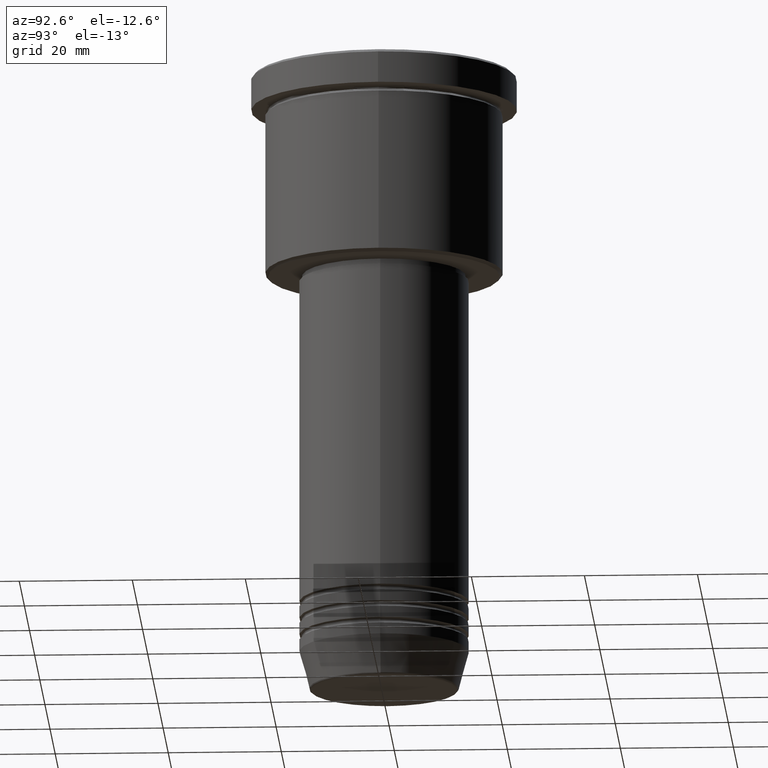
[diagram: clean part render]
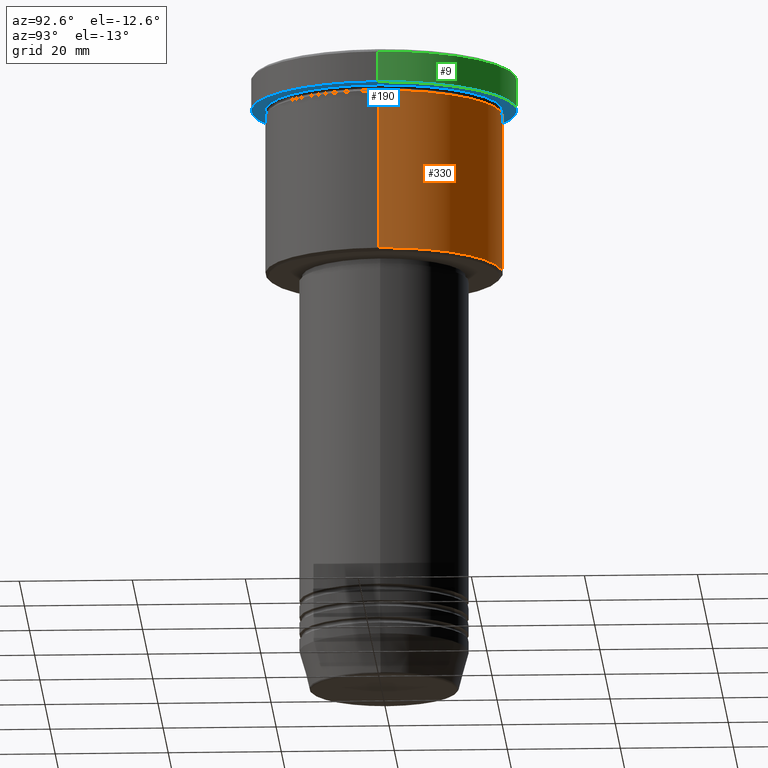
[diagram: same view with three faces highlighted in distinct colors, each labeled with its STEP entity id]
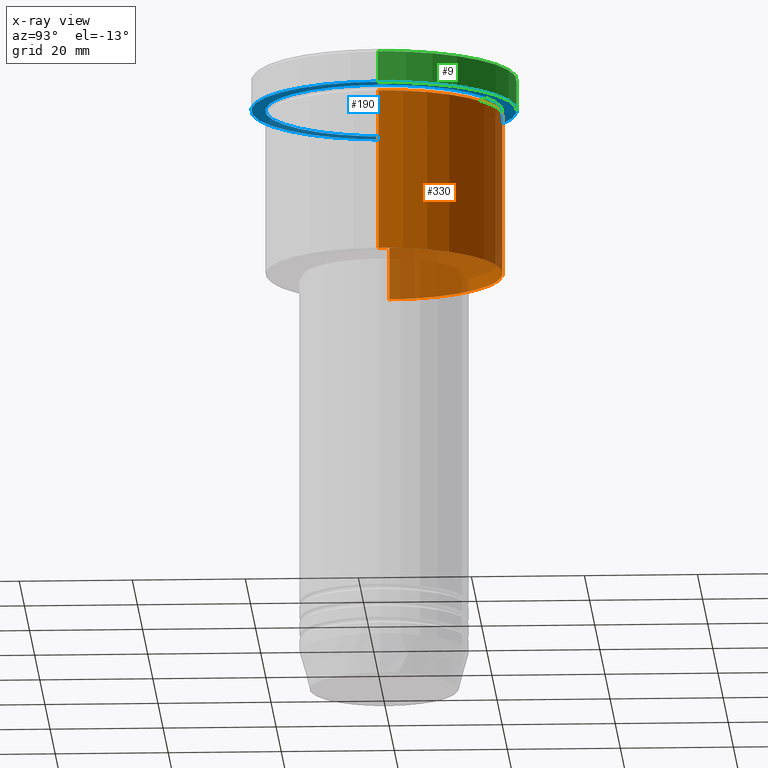
[diagram: x-ray of the same camera — body ghosted, the three highlighted faces saturated]
A machine part, auxiliary view with three faces highlighted in distinct colors.
The next image is the same camera in x-ray (body ghosted, the three faces saturated) — at least one of them is partly hidden behind the body in this view.
Their STEP definitions:

[orange] entity #330 — the highlighted cylindrical surface (partial cylindrical patch) has radius 21 mm, axis along (-0, -0, 1).
#11 = CARTESIAN_POINT ( 'NONE',  ( -21.00000000000000000, 2.571758278209441661E-15, -6.999999999999994671 ) ) ;
#64 = VECTOR ( 'NONE', #1081, 1000.000000000000000 ) ;
#77 = DIRECTION ( 'NONE',  ( -1.000000000000000000, 0.000000000000000000, 0.000000000000000000 ) ) ;
#104 = CIRCLE ( 'NONE', #485, 21.00000000000000000 ) ;
#173 = LINE ( 'NONE', #784, #959 ) ;
#192 = VERTEX_POINT ( 'NONE', #727 ) ;
#201 = DIRECTION ( 'NONE',  ( 1.000000000000000000, 0.000000000000000000, 0.000000000000000000 ) ) ;
#203 = AXIS2_PLACEMENT_3D ( 'NONE', #725, #263, #77 ) ;
#210 = EDGE_CURVE ( 'NONE', #859, #1068, #461, .T. ) ;
#234 = CARTESIAN_POINT ( 'NONE',  ( -21.00000000000000000, 2.571758278209441661E-15, -35.50000000000001421 ) ) ;
#255 = CIRCLE ( 'NONE', #203, 21.00000000000000000 ) ;
#263 = DIRECTION ( 'NONE',  ( -0.000000000000000000, -0.000000000000000000, 1.000000000000000000 ) ) ;
#316 = FACE_OUTER_BOUND ( 'NONE', #965, .T. ) ;
#330 = ADVANCED_FACE ( 'NONE', ( #316 ), #750, .T. ) ;
#335 = EDGE_CURVE ( 'NONE', #682, #1068, #104, .T. ) ;
#369 = CARTESIAN_POINT ( 'NONE',  ( -21.00000000000000000, 2.571758278209441661E-15, 0.000000000000000000 ) ) ;
#461 = LINE ( 'NONE', #369, #64 ) ;
#485 = AXIS2_PLACEMENT_3D ( 'NONE', #580, #683, #923 ) ;
#505 = AXIS2_PLACEMENT_3D ( 'NONE', #913, #587, #201 ) ;
#580 = CARTESIAN_POINT ( 'NONE',  ( 0.000000000000000000, 0.000000000000000000, -6.999999999999994671 ) ) ;
#582 = EDGE_CURVE ( 'NONE', #192, #859, #255, .T. ) ;
#587 = DIRECTION ( 'NONE',  ( -0.000000000000000000, -0.000000000000000000, 1.000000000000000000 ) ) ;
#682 = VERTEX_POINT ( 'NONE', #844 ) ;
#683 = DIRECTION ( 'NONE',  ( -0.000000000000000000, -0.000000000000000000, 1.000000000000000000 ) ) ;
#725 = CARTESIAN_POINT ( 'NONE',  ( 0.000000000000000000, 0.000000000000000000, -35.50000000000001421 ) ) ;
#727 = CARTESIAN_POINT ( 'NONE',  ( 21.00000000000000000, 0.000000000000000000, -35.50000000000001421 ) ) ;
#750 = CYLINDRICAL_SURFACE ( 'NONE', #505, 21.00000000000000000 ) ;
#784 = CARTESIAN_POINT ( 'NONE',  ( 21.00000000000000000, 0.000000000000000000, 0.000000000000000000 ) ) ;
#816 = ORIENTED_EDGE ( 'NONE', *, *, #852, .F. ) ;
#844 = CARTESIAN_POINT ( 'NONE',  ( 21.00000000000000000, 0.000000000000000000, -6.999999999999994671 ) ) ;
#852 = EDGE_CURVE ( 'NONE', #192, #682, #173, .T. ) ;
#859 = VERTEX_POINT ( 'NONE', #234 ) ;
#913 = CARTESIAN_POINT ( 'NONE',  ( 0.000000000000000000, 0.000000000000000000, 0.000000000000000000 ) ) ;
#923 = DIRECTION ( 'NONE',  ( 1.000000000000000000, 0.000000000000000000, 0.000000000000000000 ) ) ;
#959 = VECTOR ( 'NONE', #1032, 1000.000000000000000 ) ;
#965 = EDGE_LOOP ( 'NONE', ( #1067, #1045, #1117, #816 ) ) ;
#1032 = DIRECTION ( 'NONE',  ( -0.000000000000000000, -0.000000000000000000, 1.000000000000000000 ) ) ;
#1045 = ORIENTED_EDGE ( 'NONE', *, *, #210, .T. ) ;
#1067 = ORIENTED_EDGE ( 'NONE', *, *, #582, .T. ) ;
#1068 = VERTEX_POINT ( 'NONE', #11 ) ;
#1081 = DIRECTION ( 'NONE',  ( -0.000000000000000000, -0.000000000000000000, 1.000000000000000000 ) ) ;
#1117 = ORIENTED_EDGE ( 'NONE', *, *, #335, .F. ) ;

[blue] entity #190 — the highlighted planar face has unit normal (0, 0, -1).
#24 = DIRECTION ( 'NONE',  ( -0.000000000000000000, -0.000000000000000000, 1.000000000000000000 ) ) ;
#45 = VERTEX_POINT ( 'NONE', #642 ) ;
#58 = DIRECTION ( 'NONE',  ( -0.000000000000000000, -0.000000000000000000, 1.000000000000000000 ) ) ;
#73 = PLANE ( 'NONE',  #900 ) ;
#128 = DIRECTION ( 'NONE',  ( 1.000000000000000000, 0.000000000000000000, 0.000000000000000000 ) ) ;
#131 = EDGE_CURVE ( 'NONE', #45, #1044, #702, .T. ) ;
#134 = DIRECTION ( 'NONE',  ( -1.000000000000000000, 0.000000000000000000, 0.000000000000000000 ) ) ;
#172 = DIRECTION ( 'NONE',  ( 0.000000000000000000, 0.000000000000000000, -1.000000000000000000 ) ) ;
#181 = AXIS2_PLACEMENT_3D ( 'NONE', #909, #186, #719 ) ;
#186 = DIRECTION ( 'NONE',  ( -0.000000000000000000, -0.000000000000000000, 1.000000000000000000 ) ) ;
#190 = ADVANCED_FACE ( 'NONE', ( #819, #807 ), #73, .T. ) ;
#225 = AXIS2_PLACEMENT_3D ( 'NONE', #978, #257, #381 ) ;
#240 = CIRCLE ( 'NONE', #225, 21.00000000000000000 ) ;
#243 = EDGE_LOOP ( 'NONE', ( #893, #637 ) ) ;
#257 = DIRECTION ( 'NONE',  ( -0.000000000000000000, -0.000000000000000000, 1.000000000000000000 ) ) ;
#288 = EDGE_CURVE ( 'NONE', #1044, #45, #319, .T. ) ;
#299 = CIRCLE ( 'NONE', #577, 21.00000000000000000 ) ;
#319 = CIRCLE ( 'NONE', #829, 23.50000000000000000 ) ;
#381 = DIRECTION ( 'NONE',  ( -1.000000000000000000, 0.000000000000000000, 0.000000000000000000 ) ) ;
#458 = CARTESIAN_POINT ( 'NONE',  ( 0.000000000000000000, 23.50000000000000000, -5.999999999999994671 ) ) ;
#535 = CARTESIAN_POINT ( 'NONE',  ( 21.00000000000000000, 2.571758278209441661E-15, -5.999999999999994671 ) ) ;
#558 = EDGE_CURVE ( 'NONE', #854, #798, #240, .T. ) ;
#564 = DIRECTION ( 'NONE',  ( -1.000000000000000000, 0.000000000000000000, -0.000000000000000000 ) ) ;
#577 = AXIS2_PLACEMENT_3D ( 'NONE', #1060, #58, #134 ) ;
#637 = ORIENTED_EDGE ( 'NONE', *, *, #558, .T. ) ;
#642 = CARTESIAN_POINT ( 'NONE',  ( -23.50000000000000000, 2.877919977996280320E-15, -5.999999999999994671 ) ) ;
#702 = CIRCLE ( 'NONE', #181, 23.50000000000000000 ) ;
#719 = DIRECTION ( 'NONE',  ( 1.000000000000000000, 0.000000000000000000, 0.000000000000000000 ) ) ;
#798 = VERTEX_POINT ( 'NONE', #840 ) ;
#804 = EDGE_CURVE ( 'NONE', #798, #854, #299, .T. ) ;
#807 = FACE_OUTER_BOUND ( 'NONE', #868, .T. ) ;
#819 = FACE_BOUND ( 'NONE', #243, .T. ) ;
#826 = ORIENTED_EDGE ( 'NONE', *, *, #288, .F. ) ;
#829 = AXIS2_PLACEMENT_3D ( 'NONE', #940, #24, #128 ) ;
#840 = CARTESIAN_POINT ( 'NONE',  ( -21.00000000000000000, 0.000000000000000000, -5.999999999999994671 ) ) ;
#854 = VERTEX_POINT ( 'NONE', #535 ) ;
#868 = EDGE_LOOP ( 'NONE', ( #826, #927 ) ) ;
#893 = ORIENTED_EDGE ( 'NONE', *, *, #804, .T. ) ;
#900 = AXIS2_PLACEMENT_3D ( 'NONE', #458, #172, #564 ) ;
#909 = CARTESIAN_POINT ( 'NONE',  ( 0.000000000000000000, 0.000000000000000000, -5.999999999999994671 ) ) ;
#927 = ORIENTED_EDGE ( 'NONE', *, *, #131, .F. ) ;
#940 = CARTESIAN_POINT ( 'NONE',  ( 0.000000000000000000, 0.000000000000000000, -5.999999999999994671 ) ) ;
#978 = CARTESIAN_POINT ( 'NONE',  ( 0.000000000000000000, 0.000000000000000000, -5.999999999999994671 ) ) ;
#1010 = CARTESIAN_POINT ( 'NONE',  ( 23.50000000000000000, 0.000000000000000000, -5.999999999999994671 ) ) ;
#1044 = VERTEX_POINT ( 'NONE', #1010 ) ;
#1060 = CARTESIAN_POINT ( 'NONE',  ( 0.000000000000000000, 0.000000000000000000, -5.999999999999994671 ) ) ;

[green] entity #9 — the highlighted cylindrical surface (partial cylindrical patch) has radius 23.5 mm, axis along (-0, -0, 1).
#3 = DIRECTION ( 'NONE',  ( -0.000000000000000000, -0.000000000000000000, 1.000000000000000000 ) ) ;
#9 = ADVANCED_FACE ( 'NONE', ( #759 ), #322, .T. ) ;
#18 = CARTESIAN_POINT ( 'NONE',  ( -23.50000000000000000, 2.877919977996280320E-15, -0.4999999999999865663 ) ) ;
#24 = DIRECTION ( 'NONE',  ( -0.000000000000000000, -0.000000000000000000, 1.000000000000000000 ) ) ;
#45 = VERTEX_POINT ( 'NONE', #642 ) ;
#80 = EDGE_CURVE ( 'NONE', #45, #692, #892, .T. ) ;
#124 = AXIS2_PLACEMENT_3D ( 'NONE', #267, #559, #194 ) ;
#128 = DIRECTION ( 'NONE',  ( 1.000000000000000000, 0.000000000000000000, 0.000000000000000000 ) ) ;
#194 = DIRECTION ( 'NONE',  ( 1.000000000000000000, 0.000000000000000000, 0.000000000000000000 ) ) ;
#222 = AXIS2_PLACEMENT_3D ( 'NONE', #1039, #399, #597 ) ;
#267 = CARTESIAN_POINT ( 'NONE',  ( 0.000000000000000000, 0.000000000000000000, -0.4999999999999865663 ) ) ;
#279 = ORIENTED_EDGE ( 'NONE', *, *, #1065, .T. ) ;
#288 = EDGE_CURVE ( 'NONE', #1044, #45, #319, .T. ) ;
#319 = CIRCLE ( 'NONE', #829, 23.50000000000000000 ) ;
#322 = CYLINDRICAL_SURFACE ( 'NONE', #222, 23.50000000000000000 ) ;
#354 = ORIENTED_EDGE ( 'NONE', *, *, #288, .T. ) ;
#368 = EDGE_LOOP ( 'NONE', ( #354, #511, #279, #1125 ) ) ;
#374 = CARTESIAN_POINT ( 'NONE',  ( -23.50000000000000000, 2.877919977996280320E-15, 0.000000000000000000 ) ) ;
#396 = VERTEX_POINT ( 'NONE', #876 ) ;
#399 = DIRECTION ( 'NONE',  ( -0.000000000000000000, -0.000000000000000000, 1.000000000000000000 ) ) ;
#497 = CARTESIAN_POINT ( 'NONE',  ( 23.50000000000000000, 0.000000000000000000, 0.000000000000000000 ) ) ;
#506 = VECTOR ( 'NONE', #919, 1000.000000000000000 ) ;
#511 = ORIENTED_EDGE ( 'NONE', *, *, #80, .T. ) ;
#559 = DIRECTION ( 'NONE',  ( 0.000000000000000000, 0.000000000000000000, -1.000000000000000000 ) ) ;
#597 = DIRECTION ( 'NONE',  ( 1.000000000000000000, 0.000000000000000000, 0.000000000000000000 ) ) ;
#642 = CARTESIAN_POINT ( 'NONE',  ( -23.50000000000000000, 2.877919977996280320E-15, -5.999999999999994671 ) ) ;
#651 = CIRCLE ( 'NONE', #124, 23.50000000000000000 ) ;
#660 = LINE ( 'NONE', #497, #506 ) ;
#680 = EDGE_CURVE ( 'NONE', #1044, #396, #660, .T. ) ;
#692 = VERTEX_POINT ( 'NONE', #18 ) ;
#759 = FACE_OUTER_BOUND ( 'NONE', #368, .T. ) ;
#829 = AXIS2_PLACEMENT_3D ( 'NONE', #940, #24, #128 ) ;
#876 = CARTESIAN_POINT ( 'NONE',  ( 23.50000000000000000, 0.000000000000000000, -0.4999999999999865663 ) ) ;
#892 = LINE ( 'NONE', #374, #953 ) ;
#919 = DIRECTION ( 'NONE',  ( -0.000000000000000000, -0.000000000000000000, 1.000000000000000000 ) ) ;
#940 = CARTESIAN_POINT ( 'NONE',  ( 0.000000000000000000, 0.000000000000000000, -5.999999999999994671 ) ) ;
#953 = VECTOR ( 'NONE', #3, 1000.000000000000000 ) ;
#1010 = CARTESIAN_POINT ( 'NONE',  ( 23.50000000000000000, 0.000000000000000000, -5.999999999999994671 ) ) ;
#1039 = CARTESIAN_POINT ( 'NONE',  ( 0.000000000000000000, 0.000000000000000000, 0.000000000000000000 ) ) ;
#1044 = VERTEX_POINT ( 'NONE', #1010 ) ;
#1065 = EDGE_CURVE ( 'NONE', #692, #396, #651, .T. ) ;
#1125 = ORIENTED_EDGE ( 'NONE', *, *, #680, .F. ) ;